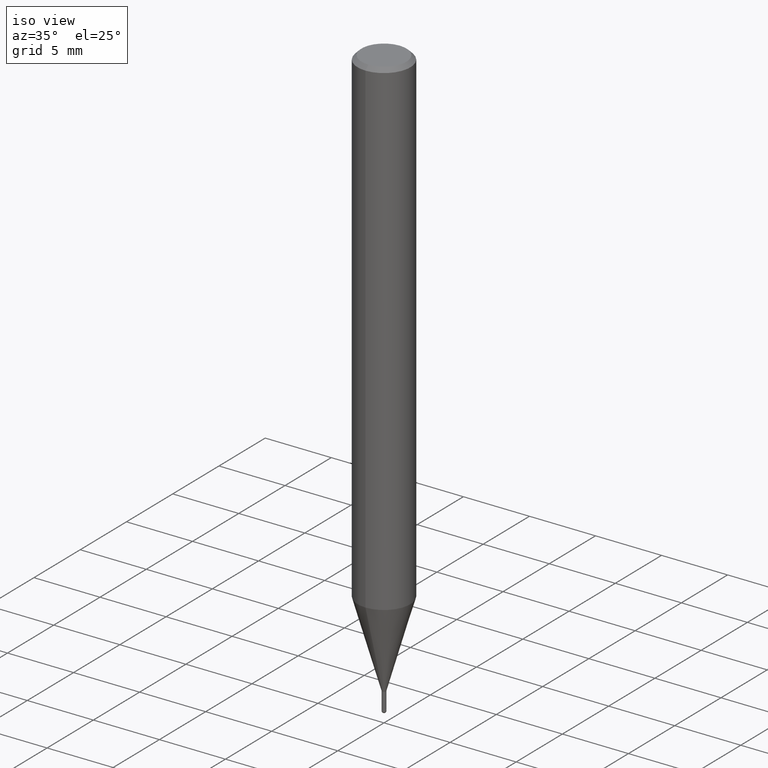
[diagram: clean part render]
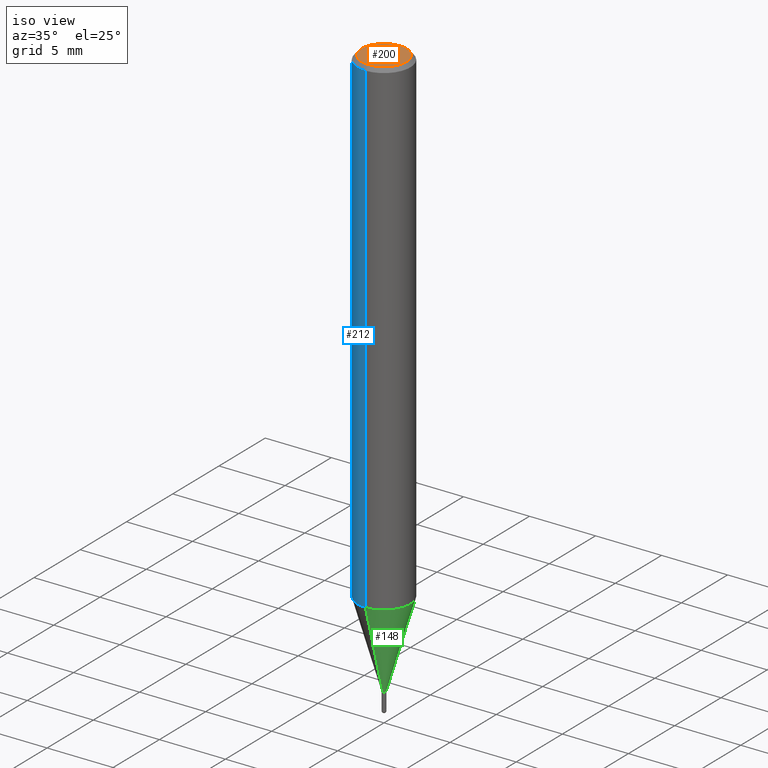
[diagram: same view with three faces highlighted in distinct colors, each labeled with its STEP entity id]
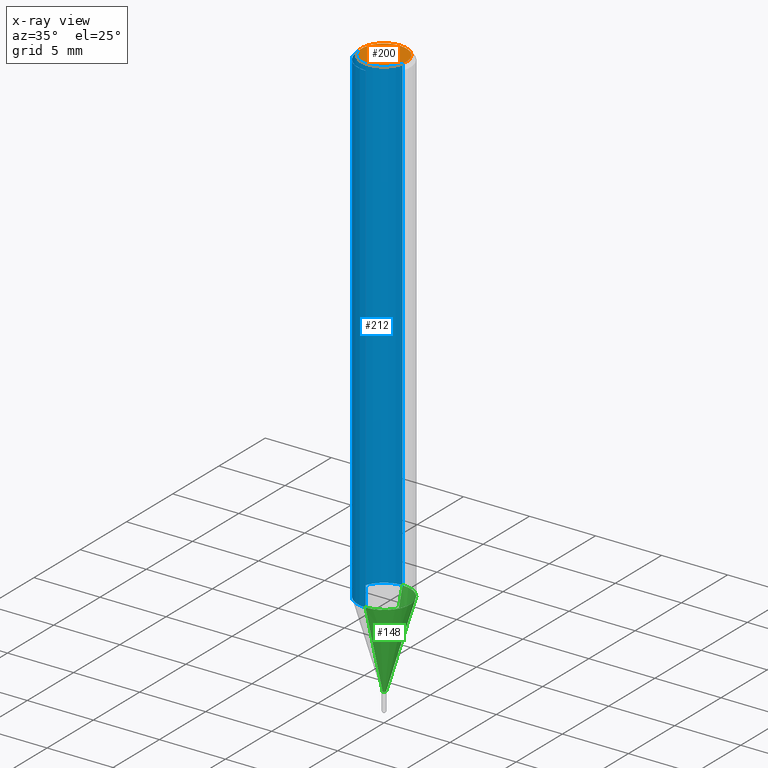
[diagram: x-ray of the same camera — body ghosted, the three highlighted faces saturated]
A machine part, iso view with three faces highlighted in distinct colors.
The next image is the same camera in x-ray (body ghosted, the three faces saturated) — at least one of them is partly hidden behind the body in this view.
Their STEP definitions:

[orange] entity #200 — the highlighted planar face has unit normal (-0, 0, 1).
#118=VERTEX_POINT('',#261);
#168=EDGE_CURVE('',#172,#118,#318,.T.);
#172=VERTEX_POINT('',#322);
#190=EDGE_CURVE('',#118,#172,#344,.T.);
#200=ADVANCED_FACE('',(#355),#356,.T.);
#261=CARTESIAN_POINT('',(0.0,1.7,0.0));
#318=CIRCLE('',#498,1.7);
#322=CARTESIAN_POINT('',(2.08183080149804E-016,-1.7,0.0));
#344=CIRCLE('',#525,1.7);
#355=FACE_OUTER_BOUND('',#538,.T.);
#356=PLANE('',#539);
#498=AXIS2_PLACEMENT_3D('',#659,#660,#661);
#525=AXIS2_PLACEMENT_3D('',#698,#699,#700);
#538=EDGE_LOOP('',(#714,#715));
#539=AXIS2_PLACEMENT_3D('',#716,#717,#718);
#659=CARTESIAN_POINT('',(0.0,0.0,0.0));
#660=DIRECTION('',(0.0,0.0,-1.0));
#661=DIRECTION('',(0.0,1.0,0.0));
#698=CARTESIAN_POINT('',(0.0,0.0,0.0));
#699=DIRECTION('',(0.0,0.0,-1.0));
#700=DIRECTION('',(0.0,1.0,0.0));
#714=ORIENTED_EDGE('',*,*,#190,.F.);
#715=ORIENTED_EDGE('',*,*,#168,.F.);
#716=CARTESIAN_POINT('',(0.0,0.85,0.0));
#717=DIRECTION('',(-0.0,0.0,1.0));
#718=DIRECTION('',(0.0,-1.0,0.0));

[blue] entity #212 — the highlighted cylindrical surface (edge-blend (fillet) strip) has radius 2 mm, axis along (-0, -0, 1).
#100=EDGE_CURVE('',#136,#130,#242,.T.);
#104=VERTEX_POINT('',#246);
#110=VERTEX_POINT('',#252);
#128=EDGE_CURVE('',#110,#104,#273,.T.);
#130=VERTEX_POINT('',#275);
#136=VERTEX_POINT('',#281);
#138=EDGE_CURVE('',#136,#104,#283,.T.);
#192=EDGE_CURVE('',#130,#110,#346,.T.);
#212=ADVANCED_FACE('',(#369),#370,.T.);
#242=LINE('',#397,#398);
#246=CARTESIAN_POINT('',(0.0,2.0,-37.031));
#252=CARTESIAN_POINT('',(0.0,2.0,-0.299999999999997));
#273=LINE('',#439,#440);
#275=CARTESIAN_POINT('',(2.44921270764475E-016,-2.0,-0.299999999999997));
#281=CARTESIAN_POINT('',(2.44921270764475E-016,-2.0,-37.031));
#283=CIRCLE('',#454,2.0);
#346=CIRCLE('',#528,2.0);
#369=FACE_OUTER_BOUND('',#555,.T.);
#370=CYLINDRICAL_SURFACE('',#556,2.0);
#397=CARTESIAN_POINT('',(2.44921270764475E-016,-2.0,-18.6655));
#398=VECTOR('',#567,1.0);
#439=CARTESIAN_POINT('',(-2.44921270764475E-016,2.0,-18.6655));
#440=VECTOR('',#607,1.0);
#454=AXIS2_PLACEMENT_3D('',#612,#613,#614);
#528=AXIS2_PLACEMENT_3D('',#701,#702,#703);
#555=EDGE_LOOP('',(#732,#733,#734,#735));
#556=AXIS2_PLACEMENT_3D('',#736,#737,#738);
#567=DIRECTION('',(-0.0,-0.0,1.0));
#607=DIRECTION('',(0.0,0.0,-1.0));
#612=CARTESIAN_POINT('',(0.0,0.0,-37.031));
#613=DIRECTION('',(0.0,0.0,-1.0));
#614=DIRECTION('',(0.0,1.0,0.0));
#701=CARTESIAN_POINT('',(0.0,0.0,-0.299999999999997));
#702=DIRECTION('',(0.0,0.0,-1.0));
#703=DIRECTION('',(0.0,1.0,0.0));
#732=ORIENTED_EDGE('',*,*,#128,.T.);
#733=ORIENTED_EDGE('',*,*,#138,.F.);
#734=ORIENTED_EDGE('',*,*,#100,.T.);
#735=ORIENTED_EDGE('',*,*,#192,.T.);
#736=CARTESIAN_POINT('',(0.0,0.0,-18.6655));
#737=DIRECTION('',(-0.0,-0.0,1.0));
#738=DIRECTION('',(0.0,1.0,0.0));

[green] entity #148 — the highlighted conical surface has half-angle 16 deg.
#108=EDGE_CURVE('',#186,#196,#250,.T.);
#120=EDGE_CURVE('',#154,#208,#263,.T.);
#126=EDGE_CURVE('',#196,#208,#271,.T.);
#148=ADVANCED_FACE('',(#296),#297,.T.);
#154=VERTEX_POINT('',#304);
#186=VERTEX_POINT('',#339);
#196=VERTEX_POINT('',#350);
#204=EDGE_CURVE('',#154,#186,#361,.T.);
#208=VERTEX_POINT('',#365);
#250=CIRCLE('',#410,0.14495);
#263=CIRCLE('',#426,1.99995);
#271=LINE('',#435,#436);
#296=FACE_OUTER_BOUND('',#469,.T.);
#297=CONICAL_SURFACE('',#470,1.07245,0.279258979430111);
#304=CARTESIAN_POINT('',(0.0,1.99995,-37.031));
#339=CARTESIAN_POINT('',(0.0,0.14495,-43.5));
#350=CARTESIAN_POINT('',(1.77506690986553E-017,-0.14495,-43.5));
#361=LINE('',#545,#546);
#365=CARTESIAN_POINT('',(2.44915147732706E-016,-1.99995,-37.031));
#410=AXIS2_PLACEMENT_3D('',#572,#573,#574);
#426=AXIS2_PLACEMENT_3D('',#589,#590,#591);
#435=CARTESIAN_POINT('',(1.31332908415681E-016,-1.07245,-40.2655));
#436=VECTOR('',#606,1.0);
#469=EDGE_LOOP('',(#633,#634,#635,#636));
#470=AXIS2_PLACEMENT_3D('',#637,#638,#639);
#545=CARTESIAN_POINT('',(-1.31332908415681E-016,1.07245,-40.2655));
#546=VECTOR('',#727,1.0);
#572=CARTESIAN_POINT('',(0.0,0.0,-43.5));
#573=DIRECTION('',(0.0,0.0,-1.0));
#574=DIRECTION('',(0.0,1.0,0.0));
#589=CARTESIAN_POINT('',(0.0,0.0,-37.031));
#590=DIRECTION('',(0.0,0.0,-1.0));
#591=DIRECTION('',(0.0,1.0,0.0));
#606=DIRECTION('',(3.37554672384358E-017,-0.275643410905672,0.961259959648943));
#633=ORIENTED_EDGE('',*,*,#204,.F.);
#634=ORIENTED_EDGE('',*,*,#120,.T.);
#635=ORIENTED_EDGE('',*,*,#126,.F.);
#636=ORIENTED_EDGE('',*,*,#108,.F.);
#637=CARTESIAN_POINT('',(0.0,0.0,-40.2655));
#638=DIRECTION('',(-0.0,-0.0,1.0));
#639=DIRECTION('',(0.0,1.0,0.0));
#727=DIRECTION('',(3.37554672384358E-017,-0.275643410905672,-0.961259959648943));